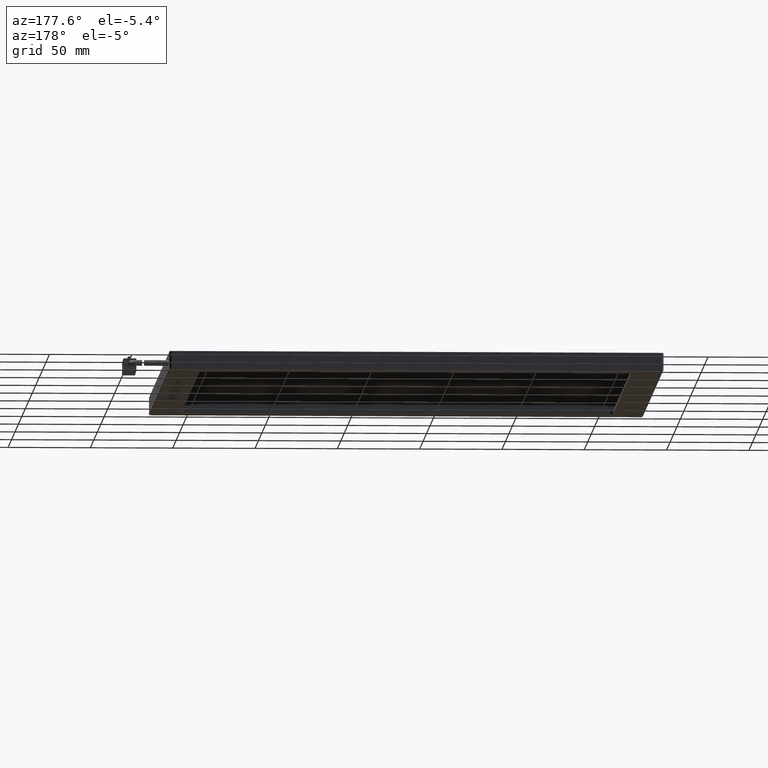
[diagram: clean part render]
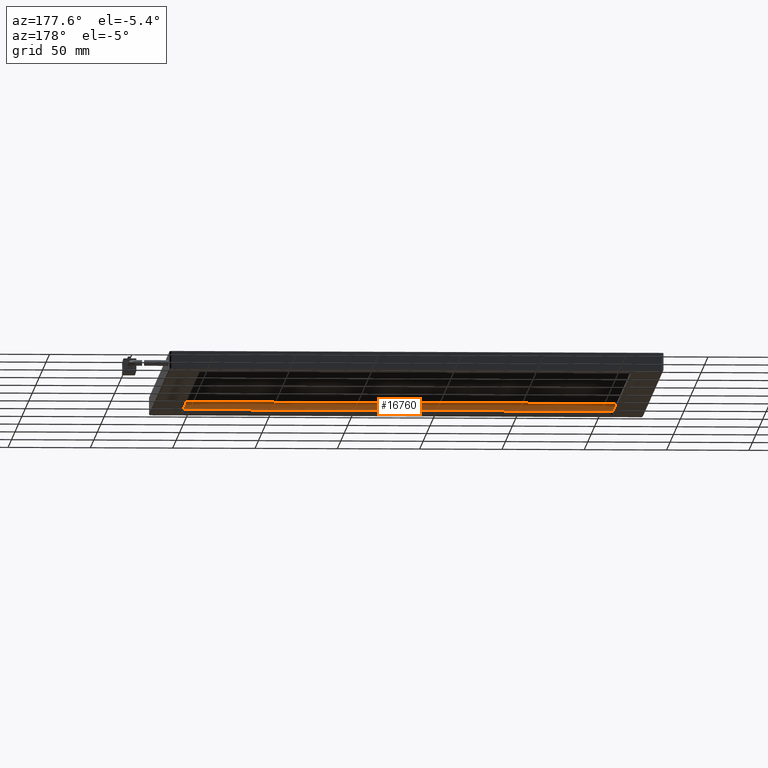
[diagram: same view with one face highlighted and labeled with its STEP entity id]
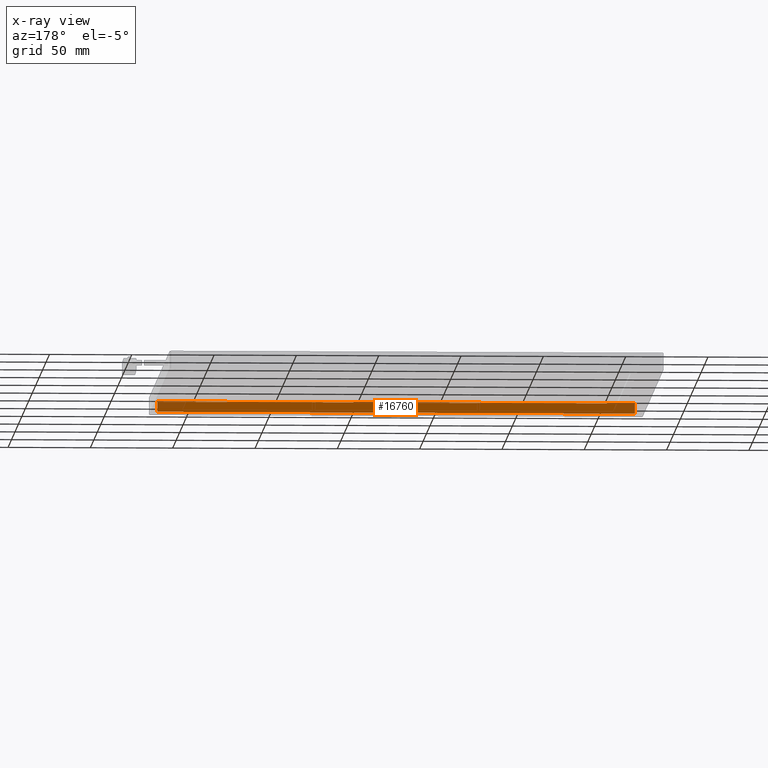
[diagram: x-ray of the same camera — body ghosted, the highlighted face saturated]
A machine part, auxiliary view. The second image highlights one B-rep face of the part: STEP entity #16760.
The next image is the same camera in x-ray: the body ghosted, the highlighted face saturated — about 6% of this face is hidden behind the body in this view.
In plain terms, the highlighted planar face has unit normal (0, -1, 0).
Its self-contained STEP definition (entity closure, byte-faithful):
#2001 = EDGE_CURVE ( 'NONE', #13454, #5135, #16212, .T. ) ;
#2267 = ORIENTED_EDGE ( 'NONE', *, *, #2001, .F. ) ;
#2349 = ORIENTED_EDGE ( 'NONE', *, *, #14208, .F. ) ;
#2773 = VECTOR ( 'NONE', #18883, 1000.000000000000000 ) ;
#2781 = DIRECTION ( 'NONE',  ( 1.000000000000000000, -0.0000000000000000000, 0.0000000000000000000 ) ) ;
#4000 = AXIS2_PLACEMENT_3D ( 'NONE', #16358, #7487, #17832 ) ;
#4062 = VERTEX_POINT ( 'NONE', #8233 ) ;
#4380 = DIRECTION ( 'NONE',  ( -0.0000000000000000000, 0.0000000000000000000, 1.000000000000000000 ) ) ;
#4940 = CARTESIAN_POINT ( 'NONE',  ( -174.7273477157360200, -106.5461928934010400, 4.999999999999931600 ) ) ;
#5135 = VERTEX_POINT ( 'NONE', #14582 ) ;
#5313 = CARTESIAN_POINT ( 'NONE',  ( -174.7273477157360200, -106.5461928934010400, -1.200000000000067900 ) ) ;
#5490 = ORIENTED_EDGE ( 'NONE', *, *, #14810, .T. ) ;
#6736 = VECTOR ( 'NONE', #11294, 1000.000000000000000 ) ;
#7487 = DIRECTION ( 'NONE',  ( 0.0000000000000000000, -1.000000000000000000, 0.0000000000000000000 ) ) ;
#8233 = CARTESIAN_POINT ( 'NONE',  ( -174.7273477157360200, -106.5461928934010400, -1.200000000000067900 ) ) ;
#8655 = CARTESIAN_POINT ( 'NONE',  ( -175.7273477157360200, -106.5461928934010400, -1.200000000000067900 ) ) ;
#8725 = FACE_OUTER_BOUND ( 'NONE', #14275, .T. ) ;
#8949 = PLANE ( 'NONE',  #4000 ) ;
#10683 = LINE ( 'NONE', #5313, #6736 ) ;
#11294 = DIRECTION ( 'NONE',  ( 0.0000000000000000000, -0.0000000000000000000, -1.000000000000000000 ) ) ;
#11552 = CARTESIAN_POINT ( 'NONE',  ( -179.7273477157360400, -106.5461928934010400, 4.999999999999931600 ) ) ;
#12300 = VECTOR ( 'NONE', #4380, 1000.000000000000000 ) ;
#12991 = CARTESIAN_POINT ( 'NONE',  ( 115.2726522842640000, -106.5461928934010400, -1.200000000000067900 ) ) ;
#13454 = VERTEX_POINT ( 'NONE', #14915 ) ;
#14208 = EDGE_CURVE ( 'NONE', #16351, #4062, #10683, .T. ) ;
#14275 = EDGE_LOOP ( 'NONE', ( #2349, #5490, #2267, #14559 ) ) ;
#14559 = ORIENTED_EDGE ( 'NONE', *, *, #18326, .F. ) ;
#14582 = CARTESIAN_POINT ( 'NONE',  ( 115.2726522842640000, -106.5461928934010400, 4.999999999999931600 ) ) ;
#14810 = EDGE_CURVE ( 'NONE', #16351, #5135, #18256, .T. ) ;
#14915 = CARTESIAN_POINT ( 'NONE',  ( 115.2726522842640000, -106.5461928934010400, -1.200000000000067900 ) ) ;
#16212 = LINE ( 'NONE', #12991, #12300 ) ;
#16351 = VERTEX_POINT ( 'NONE', #4940 ) ;
#16358 = CARTESIAN_POINT ( 'NONE',  ( -175.7273477157360200, -106.5461928934010400, -1.200000000000067900 ) ) ;
#16760 = ADVANCED_FACE ( 'NONE', ( #8725 ), #8949, .F. ) ;
#17832 = DIRECTION ( 'NONE',  ( 0.0000000000000000000, -0.0000000000000000000, -1.000000000000000000 ) ) ;
#17946 = LINE ( 'NONE', #8655, #2773 ) ;
#18256 = LINE ( 'NONE', #11552, #18699 ) ;
#18326 = EDGE_CURVE ( 'NONE', #4062, #13454, #17946, .T. ) ;
#18699 = VECTOR ( 'NONE', #2781, 1000.000000000000000 ) ;
#18883 = DIRECTION ( 'NONE',  ( 1.000000000000000000, 0.0000000000000000000, 0.0000000000000000000 ) ) ;